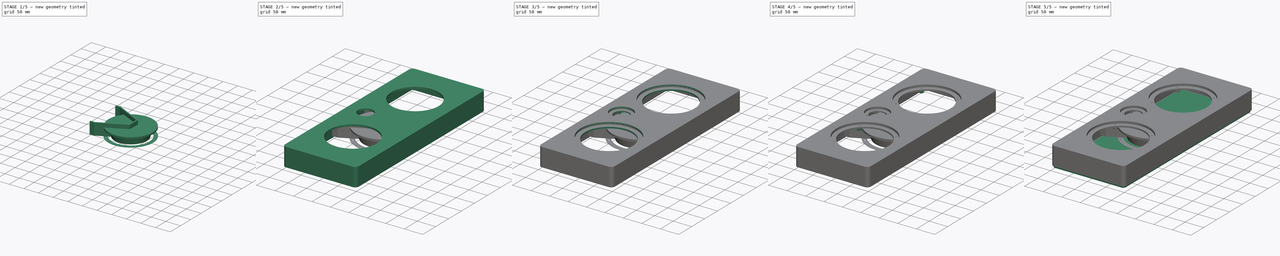
[diagram: build sequence overview — one tinted view per stage of 5, left to right]
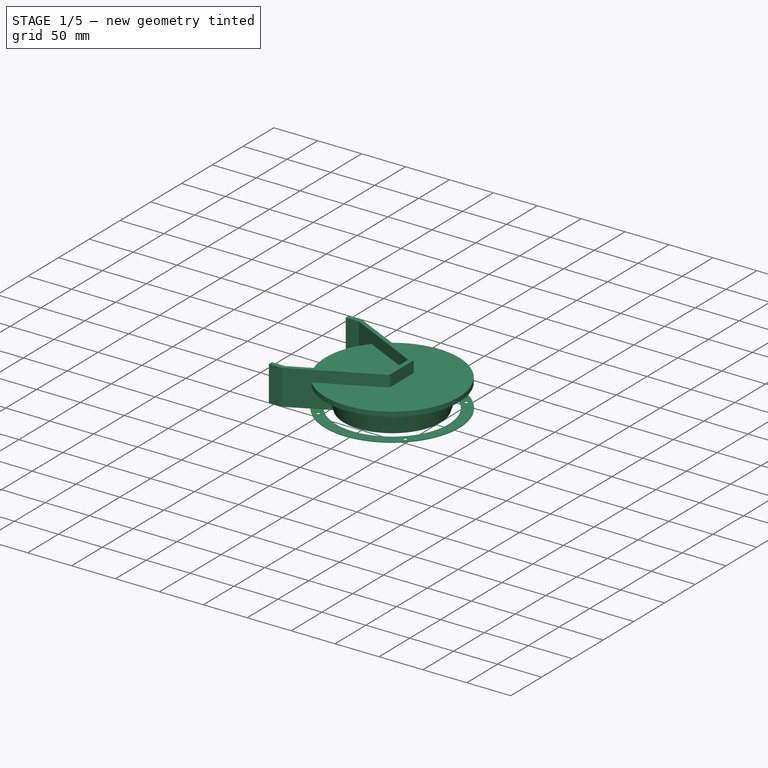
[diagram: stage 1 of 5 — iso view after this stage's code; geometry added in this stage tinted green]
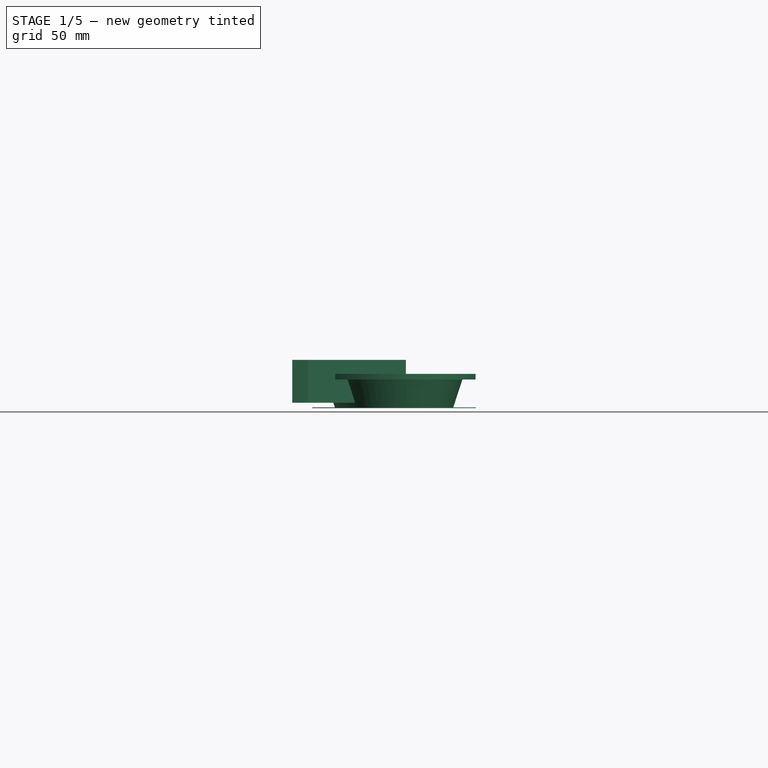
[diagram: stage 1 of 5 — front view after this stage's code; geometry added in this stage tinted green]
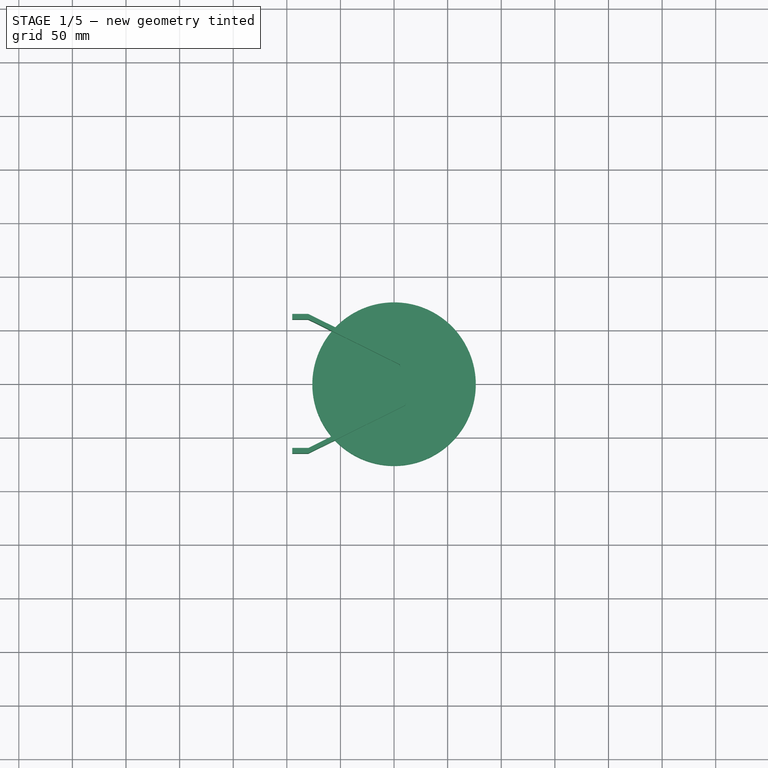
[diagram: stage 1 of 5 — top view after this stage's code; geometry added in this stage tinted green]
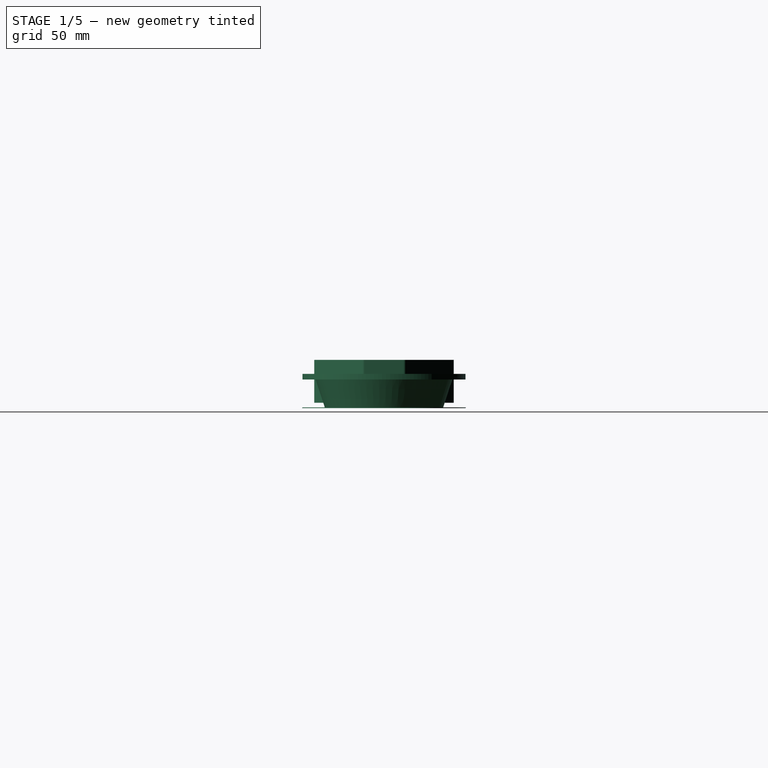
[diagram: stage 1 of 5 — right view after this stage's code; geometry added in this stage tinted green]
FCSTD DOCUMENT  (FreeCAD 1.1R42203 (Git))
Label: wallspeakers prototype v3
License: All rights reserved
LicenseURL: http://en.wikipedia.org/wiki/All_rights_reserved
objects: Sketcher::SketchObject×18, PartDesign::Pad×12, App::Point×7, PartDesign::Body×7, PartDesign::Hole×6, PartDesign::Pocket×3, Spreadsheet::Sheet×1, PartDesign::Thickness×1, PartDesign::PolarPattern×1, PartDesign::Fillet×1, PartDesign::Revolution×1
note: 117 computed .brp shape members not serialized (recipe doc carries the construction recipe); baked Part::Feature solids carry a one-line shape summary decoded from their .brp

FEATURE [Sketcher::SketchObject] Sketch001  label="driver holes"
  ArcFitTolerance = 1e-06
  AttachmentSupport = -> [Thickness]
  ExternalTypes = [0]
  FullyConstrained = true
  MakeInternals = false
  MapMode = 5
  Placement = pos=(0,0,50) rot=(0,0,1;0rad)
  expr: Constraints[0] = <<dim>>.bmr_hole_diameter
  expr: Constraints[2] = <<dim>>.bmr_x
  expr: Constraints[3] = <<dim>>.woofer_x
  expr: Constraints[4] = <<dim>>.woofer_y
  expr: Constraints[5] = <<dim>>.woofer_hole_diameter
  expr: Constraints[6] = <<dim>>.woofer_hole_diameter
  expr: Constraints[7] = <<dim>>.woofer_x
  expr: Constraints[8] = <<dim>>.woofer_y
  sketch-geometry (3):
    g0: Circle CenterX=-50 CenterY=0 CenterZ=0 NormalX=0 NormalY=0 NormalZ=1 AngleXU=0 Radius=20.5
    g1: Circle CenterX=0 CenterY=120 CenterZ=0 NormalX=0 NormalY=0 NormalZ=1 AngleXU=0 Radius=64
    g2: Circle CenterX=0 CenterY=-120 CenterZ=0 NormalX=0 NormalY=0 NormalZ=1 AngleXU=0 Radius=64
  constraints (9):
    c: Diameter(g0) = 41
    c: PointOnObject(g0,g-1)
    c: DistanceX(g0,g-1) = 50
    c: DistanceX(g1,g-1) = 0
    c: DistanceY(g-1,g1) = 120
    c: Diameter(g1) = 128
    c: Diameter(g2) = 128
    c: DistanceX(g2,g-1) = 0
    c: DistanceY(g2,g-1) = 120
FEATURE [Sketcher::SketchObject] Sketch002  label="woofer rebates"
  ArcFitTolerance = 1e-06
  AttachmentSupport = -> [Thickness]
  ExternalTypes = [0]
  FullyConstrained = true
  MakeInternals = false
  MapMode = 5
  Placement = pos=(0,0,50) rot=(0,0,1;0rad)
  expr: Constraints[0] = <<dim>>.woofer_x
  expr: Constraints[1] = <<dim>>.woofer_y
  expr: Constraints[2] = <<dim>>.woofer_rebate_diameter
  expr: Constraints[3] = <<dim>>.woofer_rebate_diameter
  expr: Constraints[4] = <<dim>>.woofer_x
  expr: Constraints[5] = <<dim>>.woofer_y
  sketch-geometry (2):
    g0: Circle CenterX=0 CenterY=120 CenterZ=0 NormalX=0 NormalY=0 NormalZ=1 AngleXU=0 Radius=76.25
    g1: Circle CenterX=0 CenterY=-120 CenterZ=0 NormalX=0 NormalY=0 NormalZ=1 AngleXU=0 Radius=76.25
  constraints (6):
    c: DistanceX(g0,g-1) = 0
    c: DistanceY(g-1,g0) = 120
    c: Diameter(g0) = 152.5
    c: Diameter(g1) = 152.5
    c: DistanceX(g1,g-1) = 0
    c: DistanceY(g1,g-1) = 120
FEATURE [Sketcher::SketchObject] Sketch004  label="bmr rebate"
  ArcFitTolerance = 1e-06
  AttachmentSupport = -> [Thickness]
  ExternalTypes = [0]
  FullyConstrained = true
  MakeInternals = false
  MapMode = 5
  Placement = pos=(0,0,50) rot=(0,0,1;0rad)
  expr: Constraints[0] = <<dim>>.bmr_rebate_diameter
  expr: Constraints[2] = <<dim>>.bmr_x
  sketch-geometry (1):
    g0: Circle CenterX=-50 CenterY=0 CenterZ=0 NormalX=0 NormalY=0 NormalZ=1 AngleXU=0 Radius=30
  constraints (3):
    c: Diameter(g0) = 60
    c: PointOnObject(g0,g-1)
    c: DistanceX(g0,g-1) = 50
FEATURE [App::Point] Origin001
  Role = Origin
FEATURE [Sketcher::SketchObject] Sketch009
  ArcFitTolerance = 1e-06
  AttachmentOffset = pos=(0,0,5) rot=(0,0,1;0rad)
  AttachmentSupport = -> [Origin002]
  ExternalTypes = [0]
  FullyConstrained = true
  MakeInternals = false
  MapMode = 5
  Placement = pos=(0,0,5) rot=(0,0,1;0rad)
  expr: .AttachmentOffset.Base.z = <<dim>>.rim_depth
  sketch-geometry (12):
    g0: LineSegment StartX=11 StartY=20 StartZ=0 EndX=11 EndY=-20 EndZ=0
    g1: LineSegment StartX=11 StartY=-20 StartZ=0 EndX=-80 EndY=-65 EndZ=0
    g2: LineSegment StartX=-80 StartY=-65 StartZ=0 EndX=-95 EndY=-65 EndZ=0
    g3: LineSegment StartX=11 StartY=20 StartZ=0 EndX=-80 EndY=65 EndZ=0
    g4: LineSegment StartX=-80 StartY=65 StartZ=0 EndX=-95 EndY=65 EndZ=0
    g5: LineSegment StartX=-95 StartY=-65 StartZ=0 EndX=-95 EndY=-60 EndZ=0
    g6: LineSegment StartX=-95 StartY=-60 StartZ=0 EndX=-80 EndY=-60 EndZ=0
    g7: LineSegment StartX=-80 StartY=-60 StartZ=0 EndX=6 EndY=-17.4725 EndZ=0
    g8: LineSegment StartX=6 StartY=-17.4725 StartZ=0 EndX=6 EndY=17.4725 EndZ=0
    g9: LineSegment StartX=6 StartY=17.4725 StartZ=0 EndX=-80 EndY=60 EndZ=0
    g10: LineSegment StartX=-80 StartY=60 StartZ=0 EndX=-95 EndY=60 EndZ=0
    g11: LineSegment StartX=-95 StartY=60 StartZ=0 EndX=-95 EndY=65 EndZ=0
  constraints (31):
    c: Parallel(g9,g3)
    c: Parallel(g7,g1)
    c: Parallel(g6,g2)
    c: Parallel(g4,g10)
    c: Coincident(g8,g9)
    c: Coincident(g8,g7)
    c: Coincident(g1,g0)
    c: Coincident(g0,g3)
    c: Coincident(g6,g5)
    c: Coincident(g5,g2)
    c: Coincident(g2,g1)
    c: Coincident(g7,g6)
    c: Coincident(g4,g3)
    c: Coincident(g9,g10)
    c: Coincident(g11,g10)
    c: Coincident(g4,g11)
    c: Symmetric(g0,g0,g-1)
    c: Symmetric(g8,g7,g-1)
    c: DistanceY(g11,g11) = 5
    c: Symmetric(g10,g5,g-1)
    c: Symmetric(g4,g2,g-1)
    c: Symmetric(g9,g6,g-1)
    c: Horizontal(g4)
    c: Distance(g9,g3) = 5
    c: DistanceX(g-1,g8) = 6
    c: DistanceX(g4,g4) = 15
    c: DistanceX(g8,g0) = 5
    c: DistanceX(g4,g-1) = 95
    c: DistanceY(g-1,g4) = 65
    c: Vertical(g5)
    c: DistanceY(g-1,g0) = 20
FEATURE [PartDesign::Pad] Pad003
  Direction = (0,0,1)
  Length = 40
  Length2 = 10
  Profile = -> Sketch009
  ReferenceAxis = -> Sketch009 [N_Axis]
  Suppressed = false
  Type = 0
  expr: Length = <<dim>>.total_depth - <<dim>>.wall_thickness - <<dim>>.rim_depth
FEATURE [PartDesign::Fillet] Fillet001
  Base = -> Pad003 [Edge23,Edge20,Edge32,Edge1,Edge2,Edge5]
  BaseFeature = -> Pad003
  Radius = 3
  SupportTransform = false
  Suppressed = false
  UseAllEdges = false
FEATURE [PartDesign::Body] Body001  label="internal baffle"
  AllowCompound = false
  Group = -> [Sketch009,Pad003,Sketch013,Hole005,Fillet001]
  Origin = -> Origin002
  Tip = -> Fillet001
FEATURE [App::Point] Origin011
  Role = Origin
FEATURE [Sketcher::SketchObject] Sketch019
  ArcFitTolerance = 1e-06
  AttachmentSupport = -> [Origin010]
  ExternalTypes = [0]
  FullyConstrained = true
  MakeInternals = false
  MapMode = 5
  Placement = pos=(0,0,0) rot=(0.57735,0.57735,0.57735;2.0944rad)
  sketch-geometry (6):
    g0: LineSegment StartX=0 StartY=32 StartZ=0 EndX=-76 EndY=32 EndZ=0
    g1: LineSegment StartX=-76 StartY=32 StartZ=0 EndX=-76 EndY=26.7 EndZ=0
    g2: LineSegment StartX=-76 StartY=26.7 StartZ=0 EndX=-63.75 EndY=26.7 EndZ=0
    g3: LineSegment StartX=-63.75 StartY=26.7 StartZ=0 EndX=-55 EndY=6e-16 EndZ=0
    g4: LineSegment StartX=-55 StartY=6e-16 StartZ=0 EndX=0 EndY=6e-16 EndZ=0
    g5: LineSegment StartX=0 StartY=6e-16 StartZ=0 EndX=0 EndY=32 EndZ=0
  constraints (17):
    c: PointOnObject(g0,g-2)
    c: Horizontal(g0)
    c: Coincident(g0,g1)
    c: Vertical(g1)
    c: Coincident(g1,g2)
    c: Horizontal(g2)
    c: Coincident(g2,g3)
    c: Coincident(g3,g4)
    c: Horizontal(g4)
    c: Coincident(g4,g5)
    c: Coincident(g5,g0)
    c: DistanceX(g0,g0) = 76
    c: DistanceY(g1,g1) = 5.3
    c: DistanceX(g2,g-1) = 63.75
    c: DistanceX(g3,g-1) = 55
    c: DistanceY(g5,g5) = 32
    c: Coincident(g4,g-1)
FEATURE [PartDesign::Revolution] Revolution
  Angle = 360
  Angle2 = 60
  Axis = (0,0,1)
  Base = (0,0,0)
  Profile = -> Sketch019
  ReferenceAxis = -> Sketch019 [V_Axis]
  Suppressed = false
  Type = 0
FEATURE [PartDesign::Body] Body005  label="woofer rough model for fitting"
  AllowCompound = false
  Group = -> [Sketch019,Revolution]
  Origin = -> Origin010
  Placement = pos=(0,120,15) rot=(0,0,1;0rad)
  Tip = -> Revolution
FEATURE [PartDesign::Pad] Pad010  label="woofer gasket pad"
  Direction = (0,0,1)
  Length = 0.7
  Length2 = 10
  Profile = -> Sketch017
  ReferenceAxis = -> Sketch017 [N_Axis]
  Suppressed = false
  Type = 0
FEATURE [PartDesign::Body] Body004  label="woofer gasket 1"
  AllowCompound = false
  Group = -> [Sketch017,Pad010]
  Origin = -> Origin008
  Placement = pos=(0,120,44) rot=(0,0,1;0rad)
  Tip = -> Pad010
  expr: .Placement.Base.y = <<dim>>.woofer_y
  expr: .Placement.Base.z = <<dim>>.total_depth - <<dim>>.woofer_rebate_depth
FEATURE [App::Point] Origin015
  Role = Origin
FEATURE [Sketcher::SketchObject] Sketch020
  ArcFitTolerance = 1e-06
  AttachmentSupport = -> [Origin014]
  ExternalTypes = [0]
  FullyConstrained = true
  MakeInternals = false
  MapMode = 5
  sketch-geometry (6):
    g0: Circle CenterX=0 CenterY=0 CenterZ=0 NormalX=0 NormalY=0 NormalZ=1 AngleXU=0 Radius=30
    g1: Circle CenterX=0 CenterY=0 CenterZ=0 NormalX=0 NormalY=0 NormalZ=1 AngleXU=0 Radius=20.5
    g2: Circle CenterX=16.95 CenterY=-16.95 CenterZ=0 NormalX=0 NormalY=0 NormalZ=1 AngleXU=0 Radius=1.75
    g3: Circle CenterX=16.95 CenterY=16.95 CenterZ=0 NormalX=0 NormalY=0 NormalZ=1 AngleXU=0 Radius=1.75
    g4: Circle CenterX=-16.95 CenterY=16.95 CenterZ=0 NormalX=0 NormalY=0 NormalZ=1 AngleXU=0 Radius=1.75
    g5: Circle CenterX=-16.95 CenterY=-16.95 CenterZ=0 NormalX=0 NormalY=0 NormalZ=1 AngleXU=0 Radius=1.75
  constraints (13):
    c: Diameter(g0) = 60
    c: Diameter(g1) = 41
    c: Coincident(g0,g1)
    c: Coincident(g-1,g0)
    c: Equal(g2,g3)
    c: Equal(g2,g4)
    c: Equal(g2,g5)
    c: Diameter(g2) = 3.5
    c: Symmetric(g4,g3,g-2)
    c: Symmetric(g5,g2,g-2)
    c: Symmetric(g4,g5,g-1)
    c: DistanceX(g-1,g3) = 16.95
    c: DistanceY(g-1,g3) = 16.95
FEATURE [PartDesign::Pad] Pad011
  Direction = (0,0,1)
  Length = 0.7
  Length2 = 10
  Profile = -> Sketch020
  ReferenceAxis = -> Sketch020 [N_Axis]
  Suppressed = false
  Type = 0
FEATURE [PartDesign::Body] Body007  label="bmr gasket"
  AllowCompound = false
  Group = -> [Sketch020,Pad011]
  Origin = -> Origin014
  Placement = pos=(-50,0,44) rot=(0,0,1;0rad)
  Tip = -> Pad011
  expr: .Placement.Base.x = -<<dim>>.bmr_x
  expr: .Placement.Base.z = <<dim>>.total_depth - <<dim>>.bmr_rebate_depth
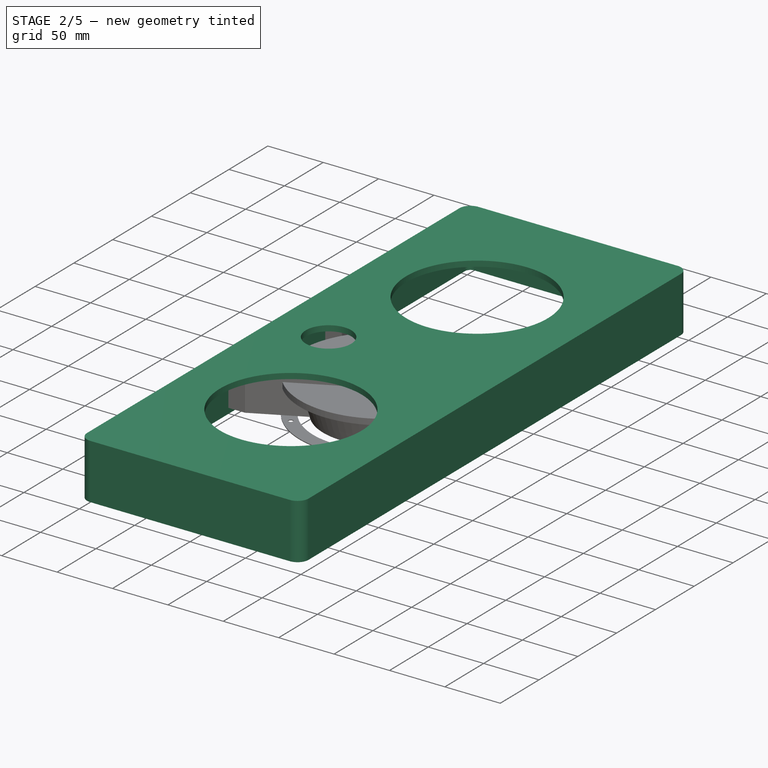
[diagram: stage 2 of 5 — iso view after this stage's code; geometry added in this stage tinted green]
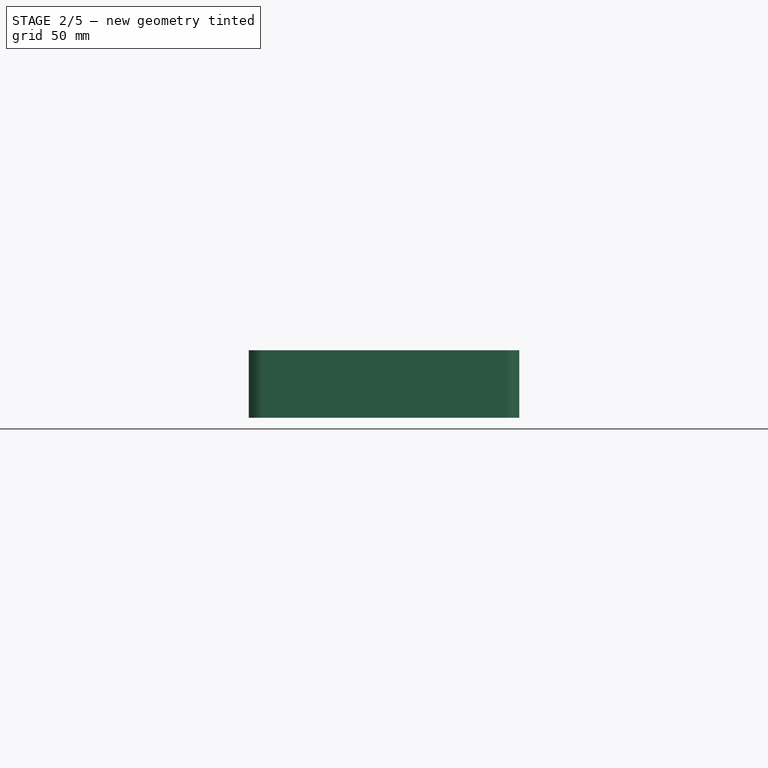
[diagram: stage 2 of 5 — front view after this stage's code; geometry added in this stage tinted green]
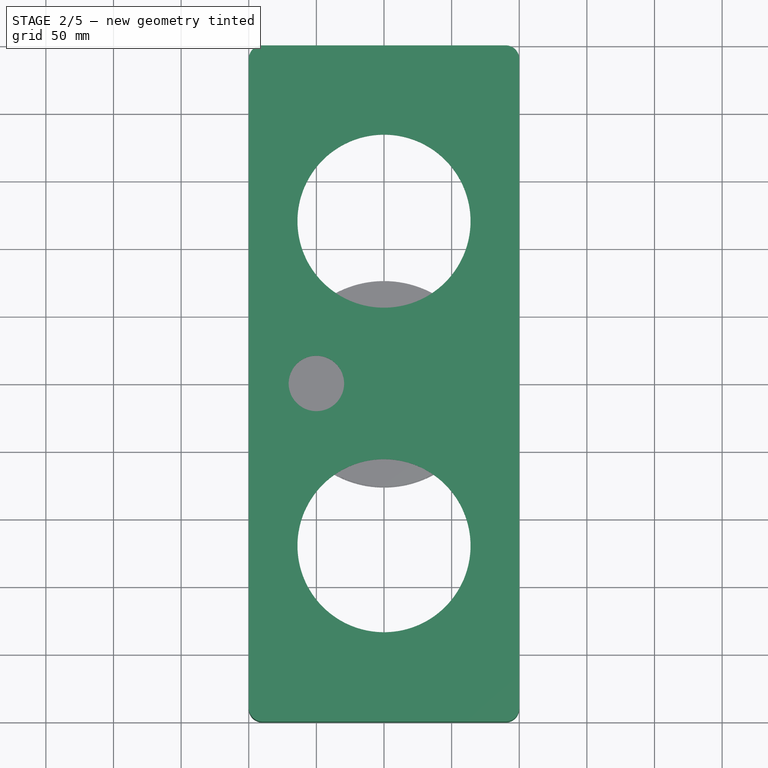
[diagram: stage 2 of 5 — top view after this stage's code; geometry added in this stage tinted green]
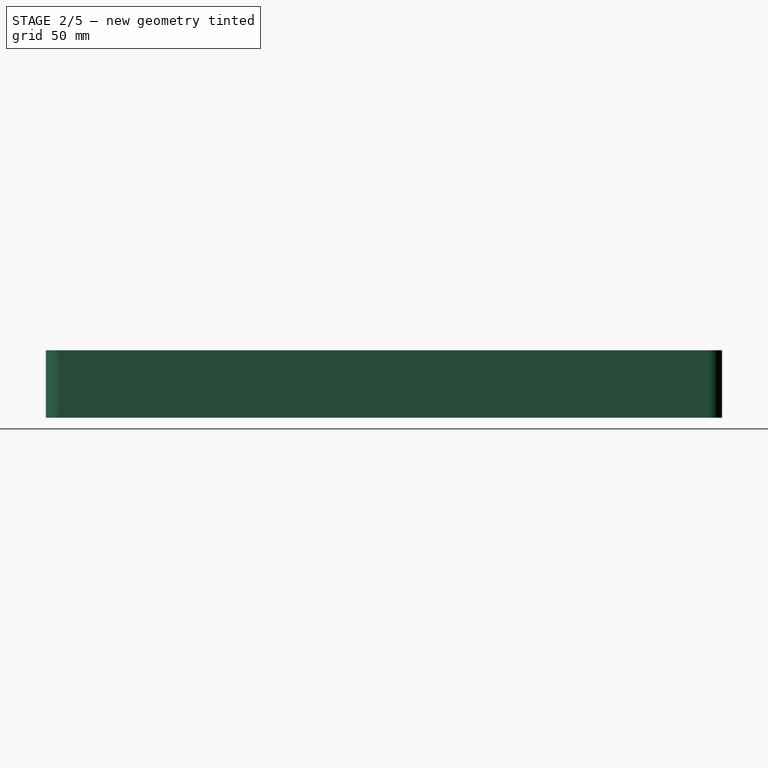
[diagram: stage 2 of 5 — right view after this stage's code; geometry added in this stage tinted green]
FEATURE [Spreadsheet::Sheet] Spreadsheet  label="dim"
  cells = A1='ext_width; B1(ext_width)=200; C1='x; A2='ext_length; B2(ext_length)=500; C2='x; A3='back_panel_width; B3(back_panel_width)=194; C3='x; A4='back_panel_length; B4(back_panel_length)=494; C4='x; A5='back_panel_radius; B5(back_panel_radius)=7; C5='x; A6='back_thickness; B6(back_thickness)=5; C6='x; A7='front_thickness; B7(front_thickness)=5; C7='x; A8='total_depth; B8(total_depth)=50; C8='x; A9='wall_thickness; B9(wall_thickness)=5; C9='x; A10='front_roundover; B10(front_roundover)=10; C10='x; A11='corner_roundover; B11(corner_roundover)=10; C11='x; A13='rim_width; B13(rim_width)=3; C13='x; A14='rim_depth; B14(rim_depth)=5; C14='x; A16='bmr_x; B16(bmr_x)=50; C16='x; A17='bmr_y; B17(bmr_y)=0; C17='x; A18='bmr_screw_distance; B18(bmr_screw_distance)=24; C18='x; A19='bmr_screw_offset; B19(bmr_screw_offset)=16.95; C19='x; A20='bmr_hole_diameter; B20(bmr_hole_diameter)=41; C20='x; A21='bmr_rebate_depth; B21(bmr_rebate_depth)=6; C21='x; A22='bmr_post_width; B22(bmr_post_width)=7; A23='bmr_rebate_diameter; B23(bmr_rebate_diameter)=60; C23='x; A25='woofer_x; B25(woofer_x)=0; C25='x; A26='woofer_y; B26(woofer_y)=120; C26='x; A27='woofer_support_thickness; B27(woofer_support_thickness)=5; C27='x; A28='woofer_support_diameter; B28(woofer_support_diameter)=164; C28='x; A29='woofer_screw_distance; B29(woofer_screw_thickness)=70.05; C29='x; A30='woofer_screw_offset; B30(woofer_screw_offset)==B29 * 0.707; C30='x; A31='woofer_hole_diameter; B31(woofer_hole_diameter)=128; C31='x; A32='woofer_rebate_depth; B32(woofer_rebate_depth)=6; C32='x; A33='woofer_rebate_diameter; B33(woofer_rebate_diameter)=152.5; C33='x; A34='woofer_gasket_depth; B34=1; A36='panel_screwpost_diameter; B36=10; A38='woofer cutout spec; B38=127.5; C38=0.3; A39='woofer rebate spec; B39=152; C39=0.3; A40='woofer rebate depth spec; B40=5.3; C40=0.3; A42='gasket thickness (compressed); B42=0.7
FEATURE [Sketcher::SketchObject] Sketch  label="outline"
  ArcFitTolerance = 1e-06
  AttachmentSupport = -> [XY_Plane]
  ExternalTypes = [0]
  FullyConstrained = true
  MakeInternals = false
  MapMode = 5
  expr: Constraints[17] = <<dim>>.corner_roundover
  expr: Constraints[18] = <<dim>>.ext_width
  expr: Constraints[19] = <<dim>>.ext_length
  sketch-geometry (10):
    g0: LineSegment StartX=-100 StartY=240 StartZ=0 EndX=-100 EndY=-240 EndZ=0
    g1: LineSegment StartX=-90 StartY=-250 StartZ=0 EndX=90 EndY=-250 EndZ=0
    g2: LineSegment StartX=100 StartY=-240 StartZ=0 EndX=100 EndY=240 EndZ=0
    g3: LineSegment StartX=90 StartY=250 StartZ=0 EndX=-90 EndY=250 EndZ=0
    g4: ArcOfCircle CenterX=-90 CenterY=240 CenterZ=0 NormalX=0 NormalY=0 NormalZ=1 AngleXU=0 Radius=10 StartAngle=1.5708 EndAngle=3.14159
    g5: ArcOfCircle CenterX=-90 CenterY=-240 CenterZ=0 NormalX=0 NormalY=0 NormalZ=1 AngleXU=0 Radius=10 StartAngle=3.14159 EndAngle=4.71239
    g6: ArcOfCircle CenterX=90 CenterY=-240 CenterZ=0 NormalX=0 NormalY=0 NormalZ=1 AngleXU=0 Radius=10 StartAngle=4.71239 EndAngle=6.28319
    g7: ArcOfCircle CenterX=90 CenterY=240 CenterZ=0 NormalX=0 NormalY=0 NormalZ=1 AngleXU=0 Radius=10 StartAngle=1.4e-15 EndAngle=1.5708
    g8: GeomPoint [constr] X=-100 Y=250 Z=0
    g9: GeomPoint [constr] X=100 Y=-250 Z=0
  constraints (22):
    c: Tangent(g0,g4) = -1.5708
    c: Tangent(g0,g5) = -1.5708
    c: Tangent(g1,g5) = -1.5708
    c: Tangent(g1,g6) = -1.5708
    c: Tangent(g2,g6) = -1.5708
    c: Tangent(g2,g7) = -1.5708
    c: Tangent(g3,g7) = -1.5708
    c: Tangent(g3,g4) = -1.5708
    c: Vertical(g0)
    c: Vertical(g2)
    c: Horizontal(g1)
    c: Horizontal(g3)
    c: Equal(g5,g6)
    c: PointOnObject(g8,g0)
    c: PointOnObject(g8,g3)
    c: PointOnObject(g9,g1)
    c: PointOnObject(g9,g2)
    c: Radius(g5) = 10
    c: DistanceX(g0,g2) = 200
    c: DistanceY(g1,g3) = 500
    c: Symmetric(g0,g2,g-2)
    c: Symmetric(g3,g1,g-1)
FEATURE [PartDesign::Pad] Pad  label="main solid body"
  Direction = (0,0,1)
  Length = 50
  Length2 = 10
  Profile = -> Sketch
  ReferenceAxis = -> Sketch [N_Axis]
  Suppressed = false
  Type = 0
  expr: Length = <<dim>>.total_depth
FEATURE [PartDesign::Thickness] Thickness  label="thickness main body"
  Base = -> Pad [Face9]
  BaseFeature = -> Pad
  Intersection = false
  Join = 0
  Mode = 0
  Reversed = true
  SupportTransform = false
  Suppressed = false
  Value = 5
  expr: Value = <<dim>>.wall_thickness
FEATURE [PartDesign::Body] Body003  label="Tweeter ring"
  AllowCompound = false
  Group = -> [Sketch015,Pad008,PolarPattern]
  Origin = -> Origin006
  Placement = pos=(-50,0,43.75) rot=(0,0,1;0rad)
  Tip = -> PolarPattern
FEATURE [Sketcher::SketchObject] Sketch018  label="back panel screw posts sketch"
  ArcFitTolerance = 1e-06
  AttachmentOffset = pos=(0,0,-5) rot=(0,0,1;0rad)
  AttachmentSupport = -> [Pad]
  ExternalTypes = [0]
  FullyConstrained = false
  MakeInternals = false
  MapMode = 5
  Placement = pos=(0,0,5) rot=(1,0,0;3.14159rad)
  expr: .AttachmentOffset.Base.z = -<<dim>>.back_thickness
  expr: Constraints[3] = <<dim>>.back_panel_length / 2 - 7.5
  expr: Constraints[4] = <<dim>>.back_panel_width / 2 - 7.5
  sketch-geometry (7):
    g0: Circle CenterX=89.5 CenterY=239.5 CenterZ=0 NormalX=0 NormalY=0 NormalZ=1 AngleXU=0 Radius=5
    g1: Circle CenterX=-89.5 CenterY=239.5 CenterZ=0 NormalX=0 NormalY=0 NormalZ=1 AngleXU=0 Radius=5
    g2: Circle CenterX=-92.5 CenterY=0 CenterZ=0 NormalX=0 NormalY=0 NormalZ=1 AngleXU=0 Radius=5
    g3: Circle CenterX=92.5 CenterY=0 CenterZ=0 NormalX=0 NormalY=0 NormalZ=1 AngleXU=0 Radius=5
    g4: Circle CenterX=-89.5 CenterY=-239.5 CenterZ=0 NormalX=0 NormalY=0 NormalZ=1 AngleXU=0 Radius=5
    g5: Circle CenterX=89.5 CenterY=-239.5 CenterZ=0 NormalX=0 NormalY=0 NormalZ=1 AngleXU=0 Radius=5
    g6: Circle CenterX=20 CenterY=0 CenterZ=0 NormalX=0 NormalY=0 NormalZ=1 AngleXU=0 Radius=5
  constraints (16):
    c: Diameter(g0) = 10
    c: Diameter(g1) = 10
    c: Symmetric(g1,g0,g-2)
    c: DistanceY(g-1,g1) = 239.5
    c: DistanceX(g1,g-1) = 89.5
    c: Diameter(g2) = 10
    c: PointOnObject(g2,g-1)
    c: Diameter(g3) = 10
    c: Diameter(g4) = 10
    c: Diameter(g5) = 10
    c: Symmetric(g2,g3,g-2)
    c: Symmetric(g1,g4,g-1)
    c: Symmetric(g0,g5,g-1)
    c: Diameter(g6) = 10
    c: PointOnObject(g6,g-1)
    c: DistanceX(g-1,g6) = 20
FEATURE [PartDesign::Pad] Pad009  label="back panel screw posts pad"
  BaseFeature = -> Thickness
  Direction = (0,0,-1)
  Length = 40
  Length2 = 10
  Profile = -> Sketch018
  ReferenceAxis = -> Sketch018 [N_Axis]
  Reversed = true
  Suppressed = false
  Type = 0
  expr: Length = 40
FEATURE [PartDesign::Pocket] Pocket  label="driver holes pocket"
  BaseFeature = -> Pad009
  Direction = (0,0,-1)
  Length = 5
  Length2 = 5
  Profile = -> Sketch001
  ReferenceAxis = -> Sketch001 [N_Axis]
  Suppressed = false
  Type = 0
  expr: Length = <<dim>>.wall_thickness
FEATURE [PartDesign::Body] Body  label="main shell"
  AllowCompound = false
  Group = -> [Sketch,Pad,Thickness,Pad009,Pocket,Pad002,Pad001,Sketch001,Sketch002,Pocket001,Sketch003,Sketch004,Pocket002,Pad005,Pad006,Pad007,Sketch005,Hole,Sketch006,Hole001,Sketch007,Hole002,Sketch008,Sketch018,Hole004]
  Origin = -> Origin
  Tip = -> Hole004
FEATURE [PartDesign::Hole] Hole005
  BaseFeature = -> Pad003
  BaseProfileType = 7
  CustomThreadClearance = 0
  Depth = 10
  DepthType = 0
  Diameter = 4
  DrillForDepth = false
  DrillPoint = 1
  DrillPointAngle = 118
  HoleCutCountersinkAngle = 90
  HoleCutCustomValues = false
  HoleCutDepth = 0
  HoleCutDiameter = 0
  HoleCutType = 0
  ModelThread = false
  Profile = -> Sketch013
  Suppressed = false
  Tapered = false
  TaperedAngle = 90
  ThreadClass = 0
  ThreadDepth = 10
  ThreadDepthType = 0
  ThreadDiameter = 4
  ThreadDirection = 0
  ThreadFit = 0
  ThreadSize = 0
  ThreadType = 0
  Threaded = false
  UseCustomThreadClearance = false
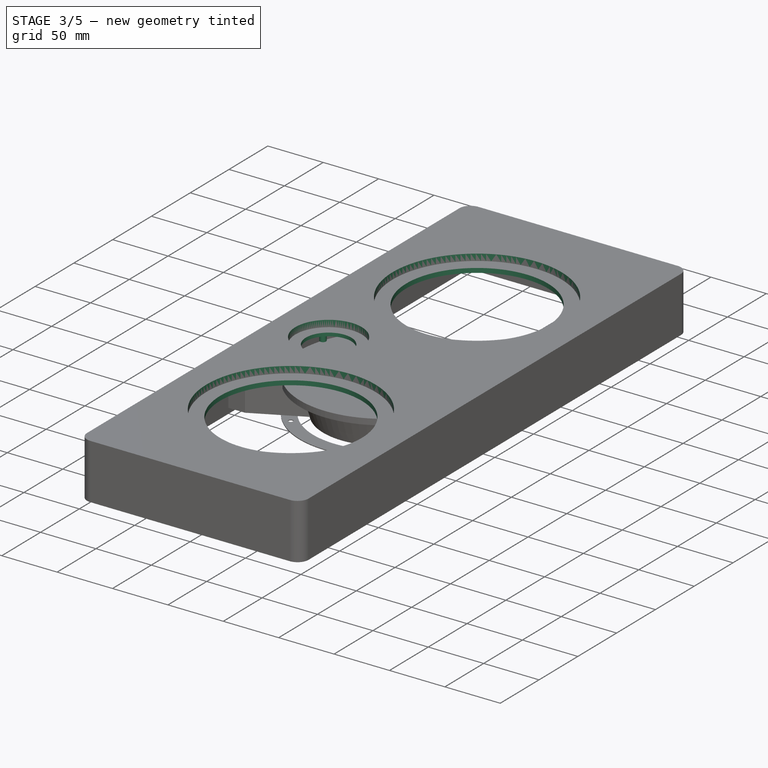
[diagram: stage 3 of 5 — iso view after this stage's code; geometry added in this stage tinted green]
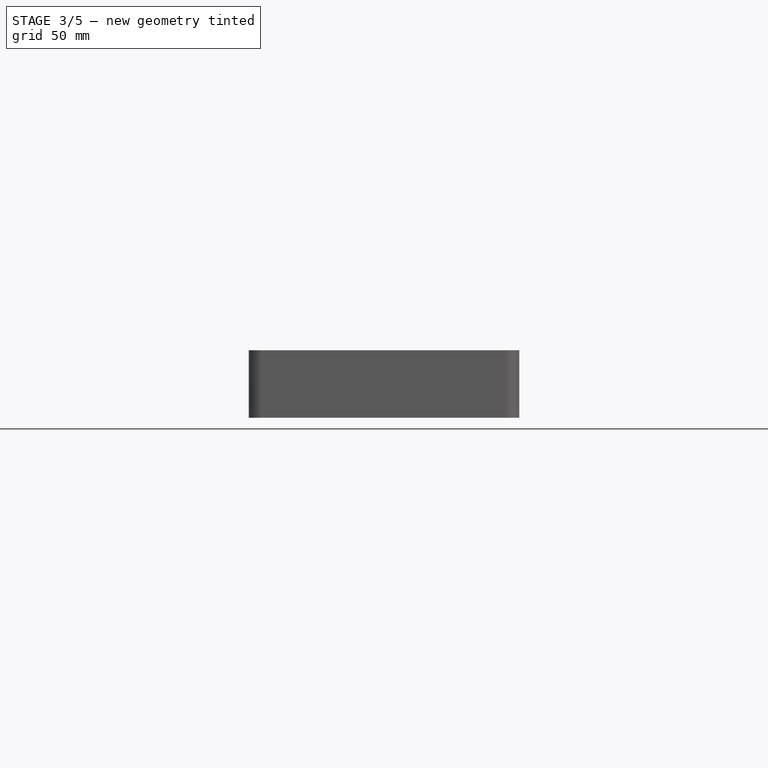
[diagram: stage 3 of 5 — front view after this stage's code; geometry added in this stage tinted green]
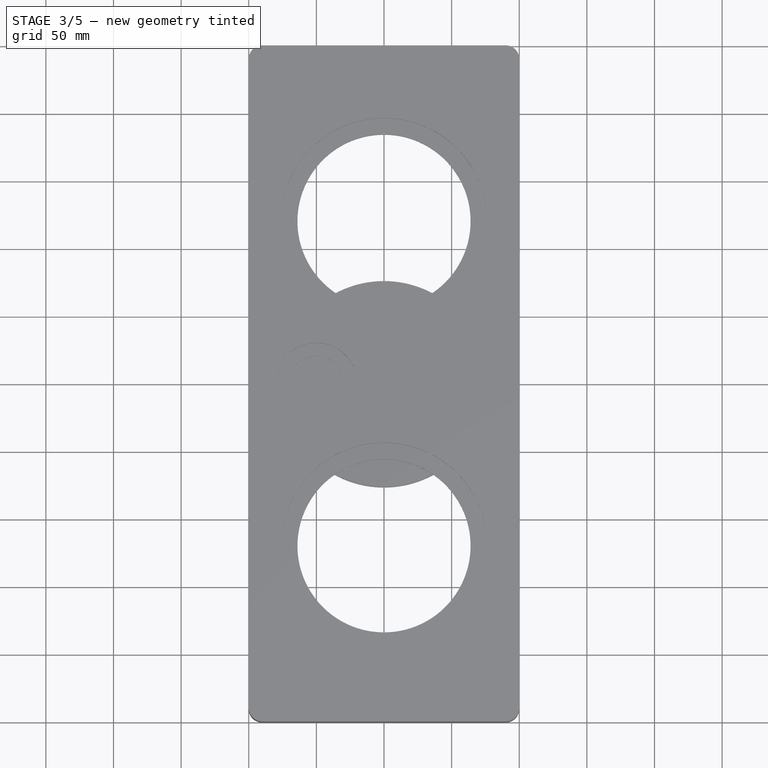
[diagram: stage 3 of 5 — top view after this stage's code; geometry added in this stage tinted green]
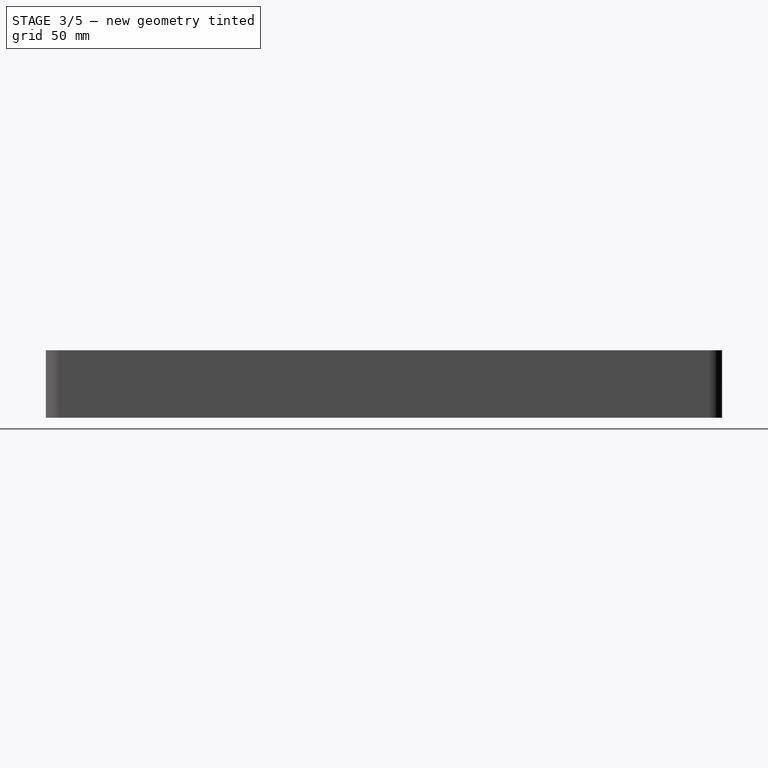
[diagram: stage 3 of 5 — right view after this stage's code; geometry added in this stage tinted green]
FEATURE [Sketcher::SketchObject] Sketch003  label="woofer support rings"
  ArcFitTolerance = 1e-06
  AttachmentSupport = -> [Pocket]
  ExternalTypes = [0]
  FullyConstrained = true
  MakeInternals = false
  MapMode = 5
  Placement = pos=(0,0,45) rot=(1,0,0;3.14159rad)
  expr: Constraints[0] = <<dim>>.woofer_x
  expr: Constraints[11] = <<dim>>.woofer_y
  expr: Constraints[1] = <<dim>>.woofer_y
  expr: Constraints[2] = <<dim>>.woofer_hole_diameter
  expr: Constraints[3] = <<dim>>.woofer_hole_diameter
  expr: Constraints[4] = <<dim>>.woofer_x
  expr: Constraints[5] = <<dim>>.woofer_y
  expr: Constraints[7] = <<dim>>.woofer_y
  expr: Constraints[8] = <<dim>>.woofer_support_diameter
  expr: Constraints[9] = <<dim>>.woofer_support_diameter
  sketch-geometry (4):
    g0: Circle CenterX=0 CenterY=120 CenterZ=0 NormalX=0 NormalY=0 NormalZ=1 AngleXU=0 Radius=64
    g1: Circle CenterX=0 CenterY=-120 CenterZ=0 NormalX=0 NormalY=0 NormalZ=1 AngleXU=0 Radius=64
    g2: Circle CenterX=0 CenterY=120 CenterZ=0 NormalX=0 NormalY=0 NormalZ=1 AngleXU=0 Radius=82
    g3: Circle CenterX=0 CenterY=-120 CenterZ=0 NormalX=0 NormalY=0 NormalZ=1 AngleXU=0 Radius=82
  constraints (12):
    c: DistanceX(g0,g-1) = 0
    c: DistanceY(g-1,g0) = 120
    c: Diameter(g0) = 128
    c: Diameter(g1) = 128
    c: DistanceX(g1,g-1) = 0
    c: DistanceY(g1,g-1) = 120
    c: DistanceX(g2,g-1) = 0
    c: DistanceY(g-1,g2) = 120
    c: Diameter(g2) = 164
    c: Diameter(g3) = 164
    c: DistanceX(g3,g-1) = 0
    c: DistanceY(g3,g-1) = 120
FEATURE [Sketcher::SketchObject] Sketch008  label="bmr support ring"
  ArcFitTolerance = 1e-06
  AttachmentSupport = -> [Pocket]
  ExternalTypes = [0]
  FullyConstrained = true
  MakeInternals = true
  MapMode = 5
  Placement = pos=(0,0,45) rot=(1,0,0;3.14159rad)
  expr: Constraints[0] = <<dim>>.bmr_rebate_diameter + 5
  expr: Constraints[2] = <<dim>>.bmr_x
  expr: Constraints[3] = <<dim>>.bmr_hole_diameter
  expr: Constraints[5] = <<dim>>.bmr_x
  sketch-geometry (2):
    g0: Circle CenterX=-50 CenterY=0 CenterZ=0 NormalX=0 NormalY=0 NormalZ=1 AngleXU=0 Radius=32.5
    g1: Circle CenterX=-50 CenterY=0 CenterZ=0 NormalX=0 NormalY=0 NormalZ=1 AngleXU=0 Radius=20.5
  constraints (6):
    c: Diameter(g0) = 65
    c: PointOnObject(g0,g-1)
    c: DistanceX(g0,g-1) = 50
    c: Diameter(g1) = 41
    c: PointOnObject(g1,g-1)
    c: DistanceX(g1,g-1) = 50
FEATURE [PartDesign::Pad] Pad002  label="bmr support pad"
  BaseFeature = -> Pocket
  Direction = (0,0,-1)
  Length = 4
  Length2 = 10
  Profile = -> Sketch008
  ReferenceAxis = -> Sketch008 [N_Axis]
  Suppressed = false
  Type = 0
FEATURE [PartDesign::Pad] Pad001  label="woofer support pad"
  BaseFeature = -> Pad002
  Direction = (0,0,-1)
  Length = 5
  Length2 = 10
  Profile = -> Sketch003
  ReferenceAxis = -> Sketch003 [N_Axis]
  Suppressed = false
  Type = 0
  expr: Length = <<dim>>.woofer_support_thickness
FEATURE [PartDesign::Pocket] Pocket001  label="woofer rebate pocket"
  BaseFeature = -> Pad001
  Direction = (0,0,-1)
  Length = 6
  Length2 = 5
  Profile = -> Sketch002
  ReferenceAxis = -> Sketch002 [N_Axis]
  Suppressed = false
  Type = 0
  expr: Length = <<dim>>.woofer_rebate_depth
FEATURE [PartDesign::Pocket] Pocket002  label="bmr rebate pocket"
  BaseFeature = -> Pocket001
  Direction = (0,0,-1)
  Length = 6
  Length2 = 5
  Profile = -> Sketch004
  ReferenceAxis = -> Sketch004 [N_Axis]
  Suppressed = false
  Type = 0
  expr: Length = <<dim>>.bmr_rebate_depth
FEATURE [Sketcher::SketchObject] Sketch005  label="bmr screw positions"
  ArcFitTolerance = 1e-06
  AttachmentOffset = pos=(-50,0,0) rot=(0,0,1;0rad)
  AttachmentSupport = -> [Pocket002]
  ExternalTypes = [0]
  FullyConstrained = true
  MakeInternals = false
  MapMode = 5
  Placement = pos=(-50,0,44) rot=(0,0,1;0rad)
  expr: .AttachmentOffset.Base.x = -<<dim>>.bmr_x
  expr: .AttachmentOffset.Base.y = <<dim>>.bmr_y
  expr: Constraints[7] = <<dim>>.bmr_screw_offset
  expr: Constraints[8] = <<dim>>.bmr_screw_offset
  sketch-geometry (4):
    g0: Circle CenterX=16.95 CenterY=-16.95 CenterZ=0 NormalX=0 NormalY=0 NormalZ=1 AngleXU=0 Radius=2.75
    g1: Circle CenterX=16.95 CenterY=16.95 CenterZ=0 NormalX=0 NormalY=0 NormalZ=1 AngleXU=0 Radius=2.75
    g2: Circle CenterX=-16.95 CenterY=16.95 CenterZ=0 NormalX=0 NormalY=0 NormalZ=1 AngleXU=0 Radius=2.75
    g3: Circle CenterX=-16.95 CenterY=-16.95 CenterZ=0 NormalX=0 NormalY=0 NormalZ=1 AngleXU=0 Radius=2.75
  constraints (9):
    c: Equal(g0,g1)
    c: Equal(g0,g2)
    c: Equal(g0,g3)
    c: Diameter(g0) = 5.5
    c: Symmetric(g2,g1,g-2)
    c: Symmetric(g3,g0,g-2)
    c: Symmetric(g2,g3,g-1)
    c: DistanceX(g-1,g1) = 16.95
    c: DistanceY(g-1,g1) = 16.95
FEATURE [PartDesign::Pad] Pad005  label="BMR screw lugs"
  BaseFeature = -> Pocket002
  Direction = (0,0,1)
  Length = 8
  Length2 = 10
  Profile = -> Sketch005
  ReferenceAxis = -> Sketch005 [N_Axis]
  Reversed = true
  Suppressed = false
  Type = 0
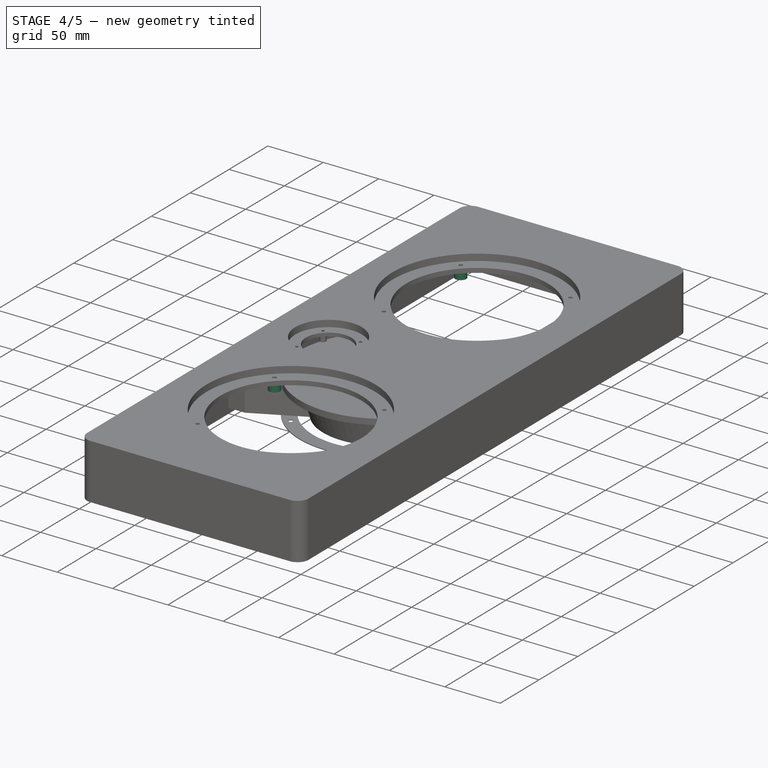
[diagram: stage 4 of 5 — iso view after this stage's code; geometry added in this stage tinted green]
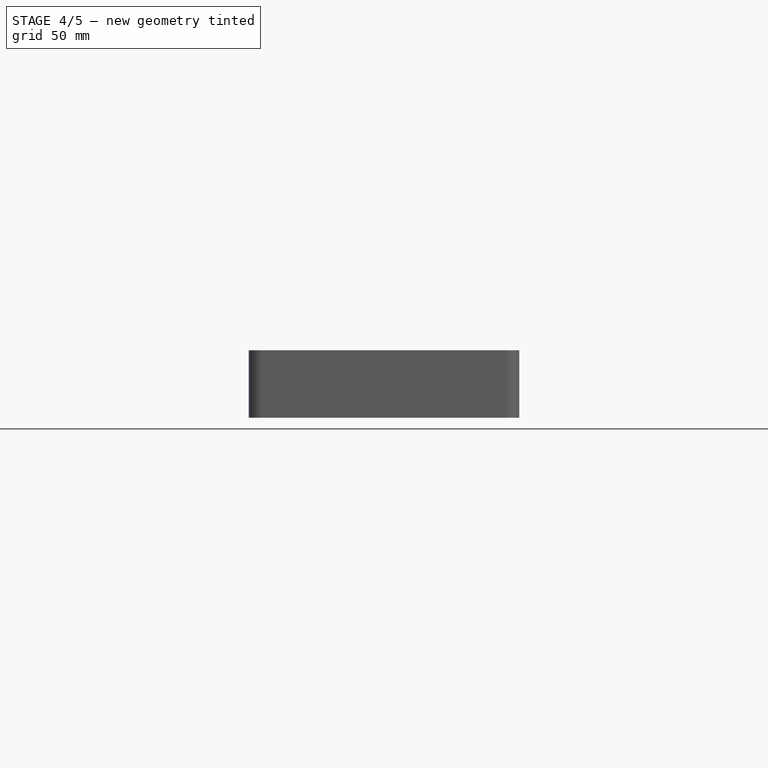
[diagram: stage 4 of 5 — front view after this stage's code; geometry added in this stage tinted green]
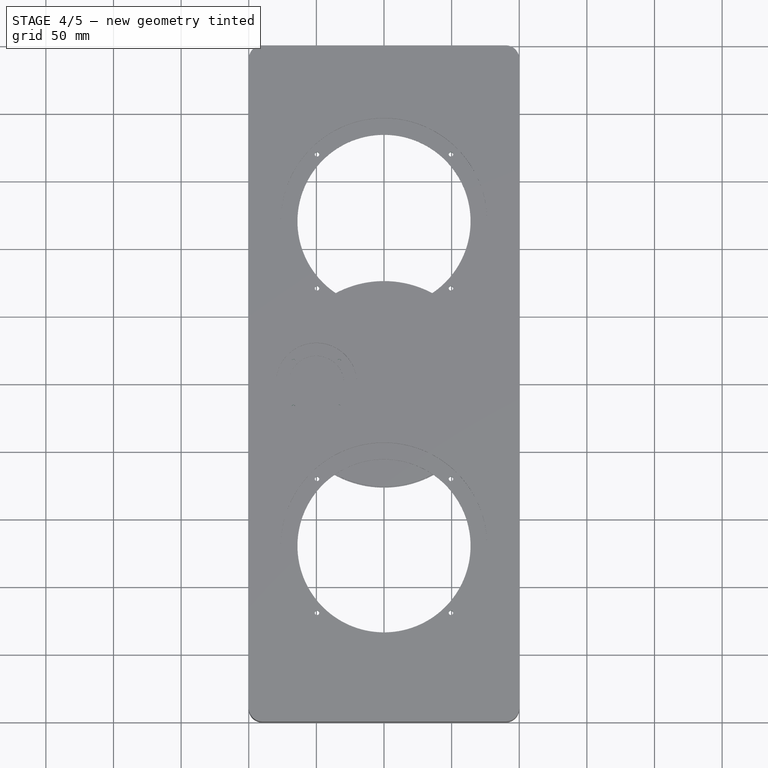
[diagram: stage 4 of 5 — top view after this stage's code; geometry added in this stage tinted green]
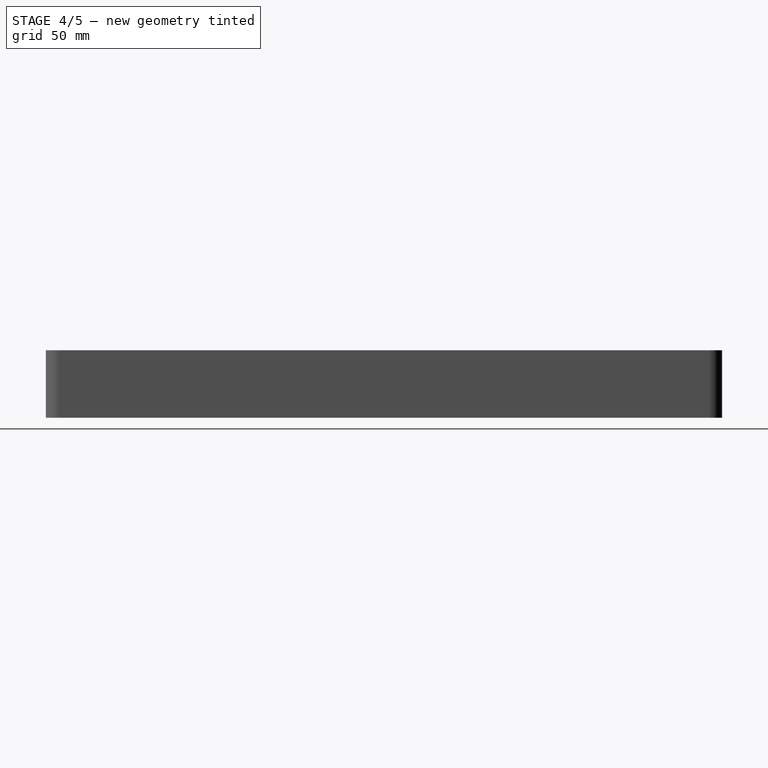
[diagram: stage 4 of 5 — right view after this stage's code; geometry added in this stage tinted green]
FEATURE [Sketcher::SketchObject] Sketch006  label="top woofer screw positions"
  ArcFitTolerance = 1e-06
  AttachmentOffset = pos=(0,120,0) rot=(0,0,1;0rad)
  AttachmentSupport = -> [Pad005]
  ExternalTypes = [0]
  FullyConstrained = true
  MakeInternals = false
  MapMode = 5
  Placement = pos=(0,120,44) rot=(0,0,1;0rad)
  expr: .AttachmentOffset.Base.x = -<<dim>>.woofer_x
  expr: .AttachmentOffset.Base.y = <<dim>>.woofer_y
  expr: Constraints[7] = <<dim>>.woofer_screw_offset
  expr: Constraints[8] = <<dim>>.woofer_screw_offset
  sketch-geometry (4):
    g0: Circle CenterX=49.5253 CenterY=-49.5253 CenterZ=0 NormalX=0 NormalY=0 NormalZ=1 AngleXU=0 Radius=5
    g1: Circle CenterX=49.5253 CenterY=49.5253 CenterZ=0 NormalX=0 NormalY=0 NormalZ=1 AngleXU=0 Radius=5
    g2: Circle CenterX=-49.5253 CenterY=49.5253 CenterZ=0 NormalX=0 NormalY=0 NormalZ=1 AngleXU=0 Radius=5
    g3: Circle CenterX=-49.5253 CenterY=-49.5253 CenterZ=0 NormalX=0 NormalY=0 NormalZ=1 AngleXU=0 Radius=5
  constraints (9):
    c: Equal(g0,g1)
    c: Equal(g0,g2)
    c: Equal(g0,g3)
    c: Diameter(g0) = 10
    c: Symmetric(g2,g1,g-2)
    c: Symmetric(g3,g0,g-2)
    c: Symmetric(g2,g3,g-1)
    c: DistanceX(g-1,g1) = 49.5253
    c: DistanceY(g-1,g1) = 49.5253
FEATURE [PartDesign::Pad] Pad006  label="top woofer screw lugs"
  BaseFeature = -> Pad005
  Direction = (0,0,1)
  Length = 10
  Length2 = 10
  Profile = -> Sketch006
  ReferenceAxis = -> Sketch006 [N_Axis]
  Reversed = true
  Suppressed = false
  Type = 0
FEATURE [Sketcher::SketchObject] Sketch007  label="bottom woofer screw positions"
  ArcFitTolerance = 1e-06
  AttachmentOffset = pos=(0,-120,0) rot=(0,0,1;0rad)
  AttachmentSupport = -> [Pad005]
  ExternalTypes = [0]
  FullyConstrained = true
  MakeInternals = true
  MapMode = 5
  Placement = pos=(0,-120,44) rot=(0,0,1;0rad)
  expr: .AttachmentOffset.Base.x = -<<dim>>.woofer_x
  expr: .AttachmentOffset.Base.y = -<<dim>>.woofer_y
  expr: Constraints[7] = <<dim>>.woofer_screw_offset
  expr: Constraints[8] = <<dim>>.woofer_screw_offset
  sketch-geometry (4):
    g0: Circle CenterX=49.5253 CenterY=-49.5253 CenterZ=0 NormalX=0 NormalY=0 NormalZ=1 AngleXU=0 Radius=5
    g1: Circle CenterX=49.5253 CenterY=49.5253 CenterZ=0 NormalX=0 NormalY=0 NormalZ=1 AngleXU=0 Radius=5
    g2: Circle CenterX=-49.5253 CenterY=49.5253 CenterZ=0 NormalX=0 NormalY=0 NormalZ=1 AngleXU=0 Radius=5
    g3: Circle CenterX=-49.5253 CenterY=-49.5253 CenterZ=0 NormalX=0 NormalY=0 NormalZ=1 AngleXU=0 Radius=5
  constraints (9):
    c: Equal(g0,g1)
    c: Equal(g0,g2)
    c: Equal(g0,g3)
    c: Diameter(g0) = 10
    c: Symmetric(g2,g1,g-2)
    c: Symmetric(g3,g0,g-2)
    c: Symmetric(g2,g3,g-1)
    c: DistanceX(g-1,g1) = 49.5253
    c: DistanceY(g-1,g1) = 49.5253
FEATURE [PartDesign::Pad] Pad007  label="bottom woofer screw lugs"
  BaseFeature = -> Pad006
  Direction = (0,0,1)
  Length = 10
  Length2 = 10
  Profile = -> Sketch007
  ReferenceAxis = -> Sketch007 [N_Axis]
  Reversed = true
  Suppressed = false
  Type = 0
FEATURE [PartDesign::Hole] Hole  label="bmr screw holes"
  BaseFeature = -> Pad007
  BaseProfileType = 6
  CustomThreadClearance = 0
  Depth = 25
  DepthType = 0
  Diameter = 2.5
  DrillForDepth = false
  DrillPoint = 1
  DrillPointAngle = 118
  HoleCutCountersinkAngle = 90
  HoleCutCustomValues = false
  HoleCutDepth = 0
  HoleCutDiameter = 6.1
  HoleCutType = 0
  ModelThread = false
  Profile = -> Sketch005
  Suppressed = false
  Tapered = false
  TaperedAngle = 90
  ThreadClass = 0
  ThreadDepth = 25
  ThreadDepthType = 0
  ThreadDiameter = 3
  ThreadDirection = 0
  ThreadFit = 0
  ThreadSize = 9
  ThreadType = 1
  Threaded = true
  UseCustomThreadClearance = false
FEATURE [PartDesign::Hole] Hole001  label="top woofer screw holes"
  BaseFeature = -> Hole
  BaseProfileType = 6
  CustomThreadClearance = 0
  Depth = 25
  DepthType = 0
  Diameter = 3.3
  DrillForDepth = false
  DrillPoint = 1
  DrillPointAngle = 118
  HoleCutCountersinkAngle = 90
  HoleCutCustomValues = false
  HoleCutDepth = 0
  HoleCutDiameter = 6.1
  HoleCutType = 0
  ModelThread = false
  Profile = -> Sketch006
  Suppressed = false
  Tapered = false
  TaperedAngle = 90
  ThreadClass = 0
  ThreadDepth = 25
  ThreadDepthType = 0
  ThreadDiameter = 4
  ThreadDirection = 0
  ThreadFit = 0
  ThreadSize = 11
  ThreadType = 1
  Threaded = true
  UseCustomThreadClearance = false
FEATURE [PartDesign::Hole] Hole002  label="bottom woofer screw holes"
  BaseFeature = -> Hole001
  BaseProfileType = 6
  CustomThreadClearance = 0
  Depth = 25
  DepthType = 0
  Diameter = 3.3
  DrillForDepth = false
  DrillPoint = 1
  DrillPointAngle = 118
  HoleCutCountersinkAngle = 90
  HoleCutCustomValues = false
  HoleCutDepth = 0
  HoleCutDiameter = 6.1
  HoleCutType = 0
  ModelThread = false
  Profile = -> Sketch007
  Suppressed = false
  Tapered = false
  TaperedAngle = 90
  ThreadClass = 0
  ThreadDepth = 25
  ThreadDepthType = 0
  ThreadDiameter = 4
  ThreadDirection = 0
  ThreadFit = 0
  ThreadSize = 11
  ThreadType = 1
  Threaded = true
  UseCustomThreadClearance = false
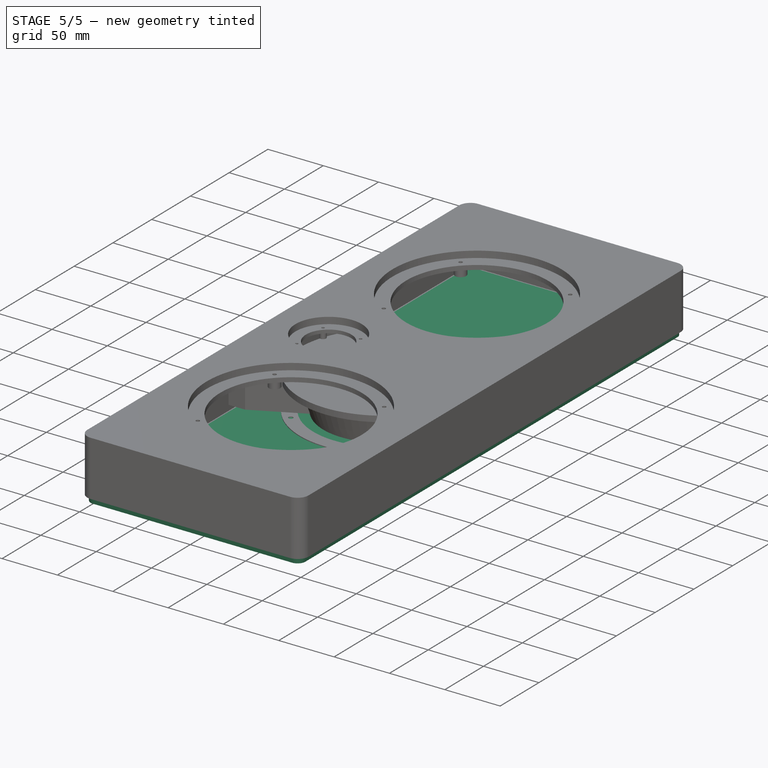
[diagram: stage 5 of 5 — iso view after this stage's code; geometry added in this stage tinted green]
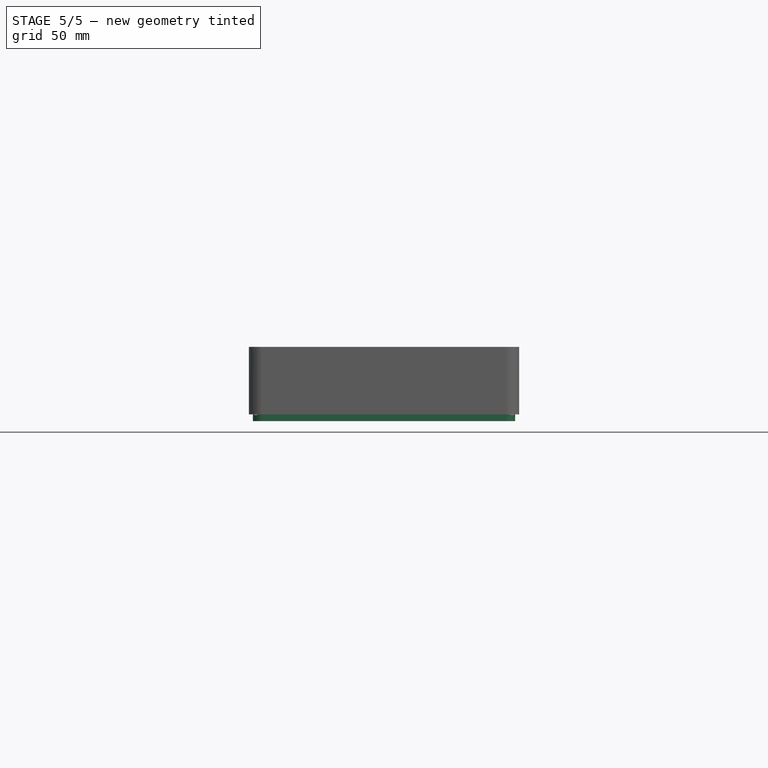
[diagram: stage 5 of 5 — front view after this stage's code; geometry added in this stage tinted green]
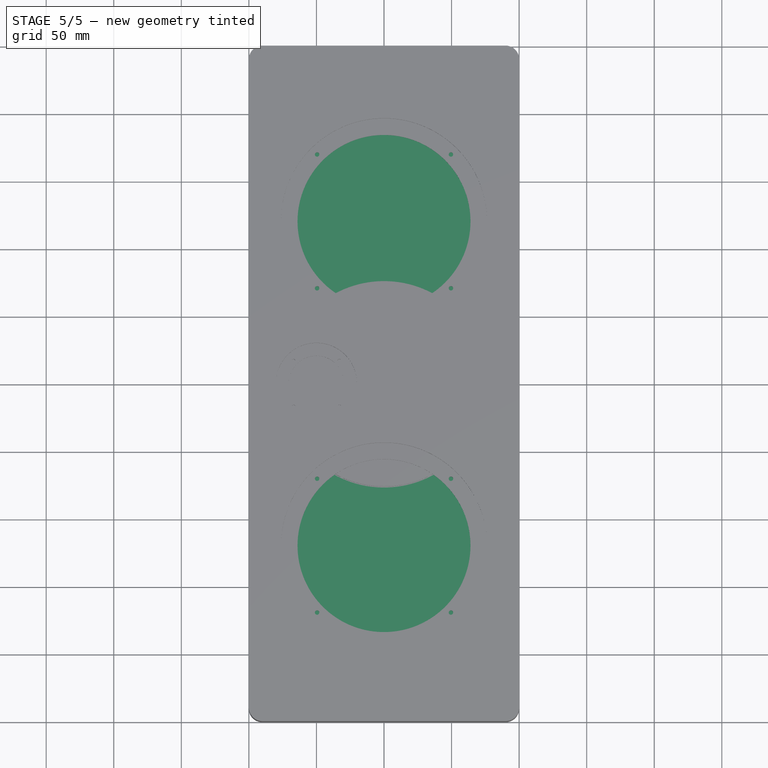
[diagram: stage 5 of 5 — top view after this stage's code; geometry added in this stage tinted green]
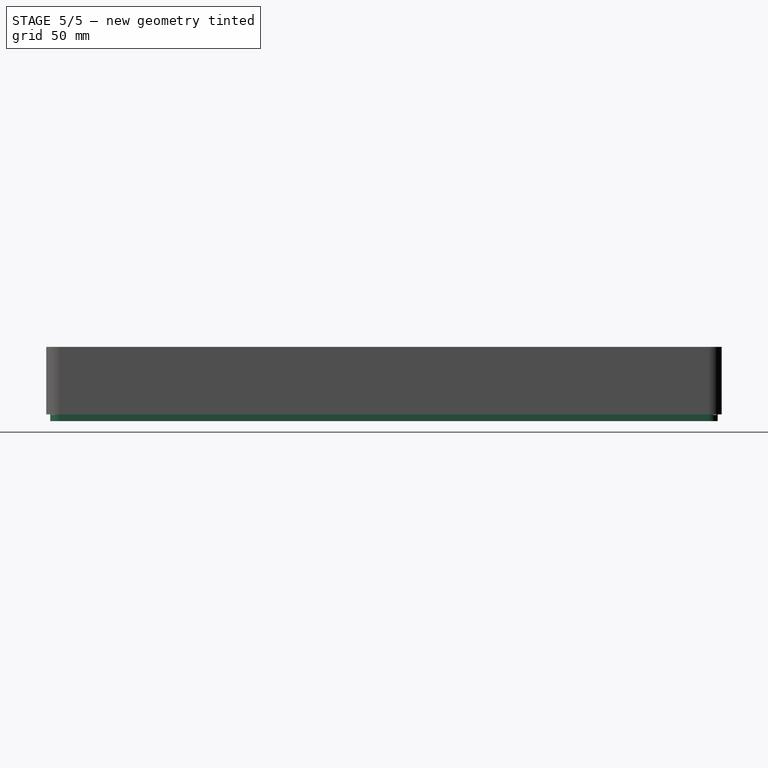
[diagram: stage 5 of 5 — right view after this stage's code; geometry added in this stage tinted green]
FEATURE [Sketcher::SketchObject] Sketch013
  ArcFitTolerance = 1e-06
  AttachmentSupport = -> [Pad003]
  ExternalTypes = [0]
  FullyConstrained = true
  MakeInternals = false
  MapMode = 5
  Placement = pos=(10.1082,20.441,0) rot=(0.163069,0.697642,0.697642;2.8183rad)
  sketch-geometry (1):
    g0: Circle CenterX=60 CenterY=8 CenterZ=0 NormalX=0 NormalY=0 NormalZ=1 AngleXU=0 Radius=2
  constraints (3):
    c: Diameter(g0) = 4
    c: DistanceY(g-1,g0) = 8
    c: DistanceX(g-1,g0) = 60
FEATURE [App::Point] Origin003
  Role = Origin
FEATURE [Sketcher::SketchObject] Sketch010  label="back panel outline"
  ArcFitTolerance = 1e-06
  AttachmentSupport = -> [XY_Plane002]
  ExternalTypes = [0]
  FullyConstrained = true
  MakeInternals = false
  MapMode = 5
  expr: Constraints[17] = <<dim>>.back_panel_radius
  expr: Constraints[18] = <<dim>>.back_panel_width
  expr: Constraints[19] = <<dim>>.back_panel_length
  sketch-geometry (10):
    g0: LineSegment StartX=-97 StartY=240 StartZ=0 EndX=-97 EndY=-240 EndZ=0
    g1: LineSegment StartX=-90 StartY=-247 StartZ=0 EndX=90 EndY=-247 EndZ=0
    g2: LineSegment StartX=97 StartY=-240 StartZ=0 EndX=97 EndY=240 EndZ=0
    g3: LineSegment StartX=90 StartY=247 StartZ=0 EndX=-90 EndY=247 EndZ=0
    g4: ArcOfCircle CenterX=-90 CenterY=240 CenterZ=0 NormalX=0 NormalY=0 NormalZ=1 AngleXU=0 Radius=7 StartAngle=1.5708 EndAngle=3.14159
    g5: ArcOfCircle CenterX=-90 CenterY=-240 CenterZ=0 NormalX=0 NormalY=0 NormalZ=1 AngleXU=0 Radius=7 StartAngle=3.14159 EndAngle=4.71239
    g6: ArcOfCircle CenterX=90 CenterY=-240 CenterZ=0 NormalX=0 NormalY=0 NormalZ=1 AngleXU=0 Radius=7 StartAngle=4.71239 EndAngle=6.28319
    g7: ArcOfCircle CenterX=90 CenterY=240 CenterZ=0 NormalX=0 NormalY=0 NormalZ=1 AngleXU=0 Radius=7 StartAngle=-9e-16 EndAngle=1.5708
    g8: GeomPoint [constr] X=-97 Y=247 Z=0
    g9: GeomPoint [constr] X=97 Y=-247 Z=0
  constraints (22):
    c: Tangent(g0,g4) = -1.5708
    c: Tangent(g0,g5) = -1.5708
    c: Tangent(g1,g5) = -1.5708
    c: Tangent(g1,g6) = -1.5708
    c: Tangent(g2,g6) = -1.5708
    c: Tangent(g2,g7) = -1.5708
    c: Tangent(g3,g7) = -1.5708
    c: Tangent(g3,g4) = -1.5708
    c: Vertical(g0)
    c: Vertical(g2)
    c: Horizontal(g1)
    c: Horizontal(g3)
    c: Equal(g5,g6)
    c: PointOnObject(g8,g0)
    c: PointOnObject(g8,g3)
    c: PointOnObject(g9,g1)
    c: PointOnObject(g9,g2)
    c: Radius(g5) = 7
    c: DistanceX(g0,g2) = 194
    c: DistanceY(g1,g3) = 494
    c: Symmetric(g0,g2,g-2)
    c: Symmetric(g3,g1,g-1)
FEATURE [PartDesign::Pad] Pad004  label="back panel pad"
  Direction = (0,0,1)
  Length = 5
  Length2 = 10
  Profile = -> Sketch010
  ReferenceAxis = -> Sketch010 [N_Axis]
  Reversed = true
  Suppressed = false
  Type = 0
  expr: Length = <<dim>>.back_thickness
FEATURE [App::Point] Origin005
  Role = Origin
FEATURE [Sketcher::SketchObject] Sketch014  label="back panel posts"
  ArcFitTolerance = 1e-06
  AttachmentSupport = -> [Pad004]
  ExternalTypes = [0]
  FullyConstrained = true
  MakeInternals = false
  MapMode = 2
  sketch-geometry (7):
    g0: Circle CenterX=92.5 CenterY=242.5 CenterZ=0 NormalX=0 NormalY=0 NormalZ=1 AngleXU=0 Radius=5
    g1: Circle CenterX=-92.5 CenterY=242.5 CenterZ=0 NormalX=0 NormalY=0 NormalZ=1 AngleXU=0 Radius=5
    g2: Circle CenterX=-92.5 CenterY=0 CenterZ=0 NormalX=0 NormalY=0 NormalZ=1 AngleXU=0 Radius=5
    g3: Circle CenterX=92.5 CenterY=0 CenterZ=0 NormalX=0 NormalY=0 NormalZ=1 AngleXU=0 Radius=5
    g4: Circle CenterX=-92.5 CenterY=-242.5 CenterZ=0 NormalX=0 NormalY=0 NormalZ=1 AngleXU=0 Radius=5
    g5: Circle CenterX=92.5 CenterY=-242.5 CenterZ=0 NormalX=0 NormalY=0 NormalZ=1 AngleXU=0 Radius=5
    g6: Circle CenterX=20 CenterY=0 CenterZ=0 NormalX=0 NormalY=0 NormalZ=1 AngleXU=0 Radius=5
  constraints (17):
    c: Diameter(g0) = 10
    c: Diameter(g1) = 10
    c: Symmetric(g1,g0,g-2)
    c: DistanceY(g-1,g1) = 242.5
    c: DistanceX(g1,g-1) = 92.5
    c: Diameter(g2) = 10
    c: PointOnObject(g2,g-1)
    c: DistanceX(g2,g-1) = 92.5
    c: Diameter(g3) = 10
    c: Diameter(g4) = 10
    c: Diameter(g5) = 10
    c: Symmetric(g2,g3,g-2)
    c: Symmetric(g1,g4,g-1)
    c: Symmetric(g0,g5,g-1)
    c: Diameter(g6) = 10
    c: PointOnObject(g6,g-1)
    c: DistanceX(g-1,g6) = 20
FEATURE [App::Point] Origin007
  Role = Origin
FEATURE [Sketcher::SketchObject] Sketch015
  ArcFitTolerance = 1e-06
  AttachmentSupport = -> [Origin006]
  ExternalTypes = [0]
  FullyConstrained = true
  MakeInternals = false
  MapMode = 5
  sketch-geometry (8):
    g0: ArcOfCircle CenterX=0 CenterY=0 CenterZ=0 NormalX=0 NormalY=0 NormalZ=1 AngleXU=0 Radius=29.9 StartAngle=1.5708 EndAngle=3.14159
    g1: ArcOfCircle CenterX=0 CenterY=0 CenterZ=0 NormalX=0 NormalY=0 NormalZ=1 AngleXU=0 Radius=23.25 StartAngle=2.58919 EndAngle=3.14159
    g2: ArcOfCircle CenterX=-16.8247 CenterY=16.8336 CenterZ=0 NormalX=0 NormalY=0 NormalZ=1 AngleXU=0 Radius=3.72 StartAngle=0.960084 EndAngle=3.75505
    g3: ArcOfCircle CenterX=-21.785 CenterY=13.3876 CenterZ=0 NormalX=0 NormalY=0 NormalZ=1 AngleXU=0 Radius=2.32 StartAngle=5.74581 EndAngle=6.88028
    g4: ArcOfCircle CenterX=-13.3758 CenterY=21.792 CenterZ=0 NormalX=0 NormalY=0 NormalZ=1 AngleXU=0 Radius=2.32 StartAngle=4.10939 EndAngle=5.24385
    g5: LineSegment StartX=1.4e-15 StartY=29.9 StartZ=0 EndX=1.4e-15 EndY=23.25 EndZ=0
    g6: LineSegment StartX=-29.9 StartY=3.7e-15 StartZ=0 EndX=-23.25 EndY=3.7e-15 EndZ=0
    g7: ArcOfCircle CenterX=0 CenterY=0 CenterZ=0 NormalX=0 NormalY=0 NormalZ=1 AngleXU=0 Radius=23.25 StartAngle=1.5708 EndAngle=2.1232
  constraints (28):
    c: Coincident(g0,g-1)
    c: PointOnObject(g1,g-1)
    c: PointOnObject(g1,g-2)
    c: DistanceX(g7,g-1) = 12.2
    c: DistanceY(g-1,g1) = 12.2
    c: Radius(g2) = 3.72
    c: Coincident(g3,g2)
    c: Coincident(g3,g1)
    c: Coincident(g4,g7)
    c: Coincident(g4,g2)
    c: Radius(g3) = 2.32
    c: Radius(g4) = 2.32
    c: Angle(g3) = 1.13446
    c: Angle(g4) = 1.13446
    c: Distance(g2,g-1) = 23.8
    c: Angle(g2) = 2.79497
    c: Vertical(g5)
    c: PointOnObject(g5,g-2)
    c: Horizontal(g6)
    c: PointOnObject(g6,g-1)
    c: Diameter(g0) = 59.8
    c: Coincident(g5,g0)
    c: Coincident(g6,g0)
    c: Diameter(g1) = 46.5
    c: Coincident(g5,g7)
    c: Coincident(g6,g1)
    c: Coincident(g1,g7)
    c: Radius(g7) = 23.25
FEATURE [PartDesign::Pad] Pad008
  Direction = (0,0,1)
  Length = 3.25
  Length2 = 10
  Profile = -> Sketch015
  ReferenceAxis = -> Sketch015 [N_Axis]
  Suppressed = false
  Type = 0
FEATURE [App::Point] Origin009
  Role = Origin
FEATURE [Sketcher::SketchObject] Sketch017  label="Woofer gasket"
  ArcFitTolerance = 1e-06
  AttachmentSupport = -> [Origin008]
  ExternalTypes = [0]
  FullyConstrained = true
  MakeInternals = false
  MapMode = 5
  expr: Constraints[0] = <<dim>>.woofer_rebate_diameter
  expr: Constraints[11] = <<dim>>.woofer_screw_offset
  expr: Constraints[12] = <<dim>>.woofer_screw_offset
  expr: Constraints[1] = <<dim>>.woofer_hole_diameter
  sketch-geometry (6):
    g0: Circle CenterX=0 CenterY=0 CenterZ=0 NormalX=0 NormalY=0 NormalZ=1 AngleXU=0 Radius=76.25
    g1: Circle CenterX=0 CenterY=0 CenterZ=0 NormalX=0 NormalY=0 NormalZ=1 AngleXU=0 Radius=64
    g2: Circle CenterX=49.5253 CenterY=-49.5253 CenterZ=0 NormalX=0 NormalY=0 NormalZ=1 AngleXU=0 Radius=2
    g3: Circle CenterX=49.5253 CenterY=49.5253 CenterZ=0 NormalX=0 NormalY=0 NormalZ=1 AngleXU=0 Radius=2
    g4: Circle CenterX=-49.5253 CenterY=49.5253 CenterZ=0 NormalX=0 NormalY=0 NormalZ=1 AngleXU=0 Radius=2
    g5: Circle CenterX=-49.5253 CenterY=-49.5253 CenterZ=0 NormalX=0 NormalY=0 NormalZ=1 AngleXU=0 Radius=2
  constraints (13):
    c: Diameter(g0) = 152.5
    c: Diameter(g1) = 128
    c: Coincident(g0,g1)
    c: Coincident(g-1,g0)
    c: Equal(g2,g3)
    c: Equal(g2,g4)
    c: Equal(g2,g5)
    c: Diameter(g2) = 4
    c: Symmetric(g4,g3,g-2)
    c: Symmetric(g5,g2,g-2)
    c: Symmetric(g4,g5,g-1)
    c: DistanceX(g-1,g3) = 49.5253
    c: DistanceY(g-1,g3) = 49.5253
FEATURE [PartDesign::PolarPattern] PolarPattern
  Angle = 360
  Axis = -> Sketch015 [N_Axis]
  BaseFeature = -> Pad008
  Mode = 0
  Occurrences = 4
  Offset = 120
  Originals = -> [Pad008]
  Suppressed = false
  TransformMode = 0
FEATURE [PartDesign::Hole] Hole003  label="back panel screw holes"
  BaseFeature = -> Pad004
  BaseProfileType = 7
  CustomThreadClearance = 0
  Depth = 5
  DepthType = 0
  Diameter = 4.5
  DrillForDepth = false
  DrillPoint = 1
  DrillPointAngle = 118
  HoleCutCountersinkAngle = 90
  HoleCutCustomValues = false
  HoleCutDepth = 4
  HoleCutDiameter = 8
  HoleCutType = 2
  ModelThread = false
  Profile = -> Sketch014
  Suppressed = false
  Tapered = false
  TaperedAngle = 90
  ThreadClass = 0
  ThreadDepth = 5
  ThreadDepthType = 0
  ThreadDiameter = 4
  ThreadDirection = 0
  ThreadFit = 0
  ThreadSize = 11
  ThreadType = 1
  Threaded = false
  UseCustomThreadClearance = false
FEATURE [PartDesign::Body] Body002  label="back panel"
  AllowCompound = false
  Group = -> [Sketch010,Pad004,Sketch014,Hole003]
  Origin = -> Origin004
  Placement = pos=(0,0,5) rot=(0,0,1;0rad)
  Tip = -> Hole003
  expr: .Placement.Base.z = <<dim>>.rim_depth
FEATURE [PartDesign::Hole] Hole004  label="back panel screw post threaded holes"
  BaseFeature = -> Hole002
  BaseProfileType = 7
  CustomThreadClearance = 0
  Depth = 25
  DepthType = 0
  Diameter = 3.3
  DrillForDepth = false
  DrillPoint = 1
  DrillPointAngle = 118
  HoleCutCountersinkAngle = 90
  HoleCutCustomValues = false
  HoleCutDepth = 0
  HoleCutDiameter = 0
  HoleCutType = 0
  ModelThread = false
  Profile = -> Sketch018
  Suppressed = false
  Tapered = false
  TaperedAngle = 90
  ThreadClass = 0
  ThreadDepth = 25
  ThreadDepthType = 0
  ThreadDiameter = 4
  ThreadDirection = 0
  ThreadFit = 0
  ThreadSize = 11
  ThreadType = 1
  Threaded = true
  UseCustomThreadClearance = false
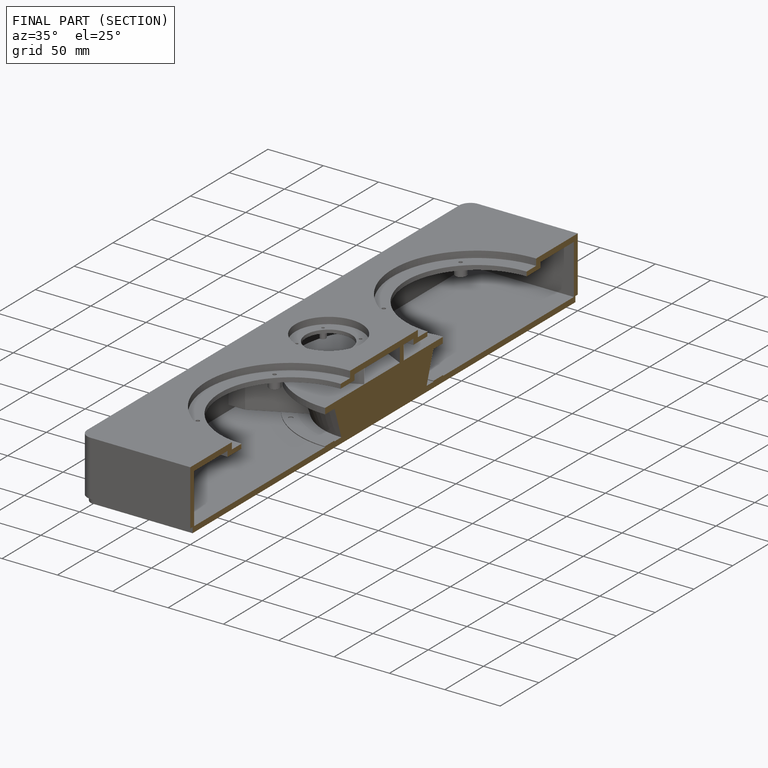
[diagram: finished part — half-section view (interior)]
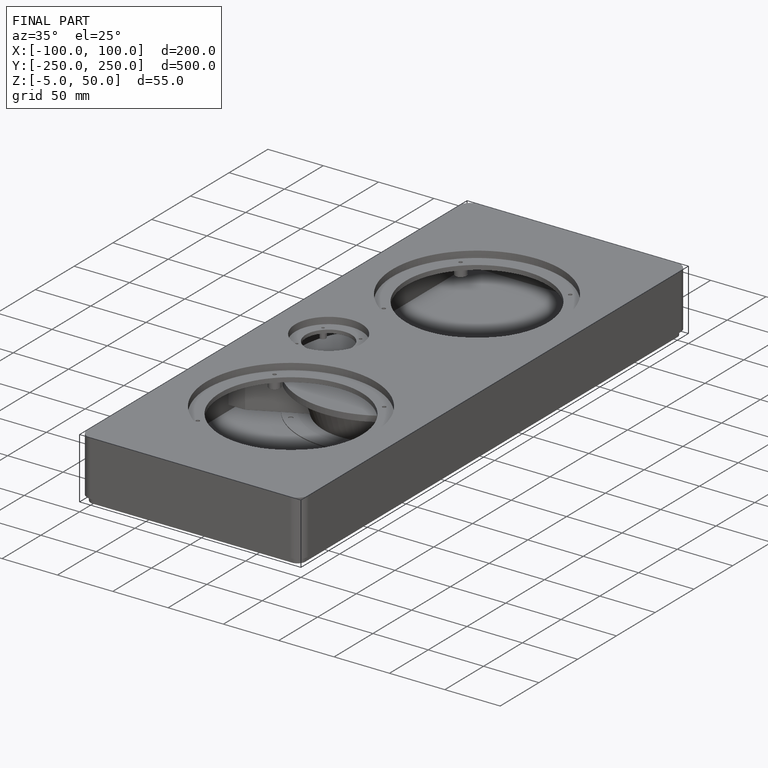
[diagram: finished part — iso view with bounding-box wireframe]
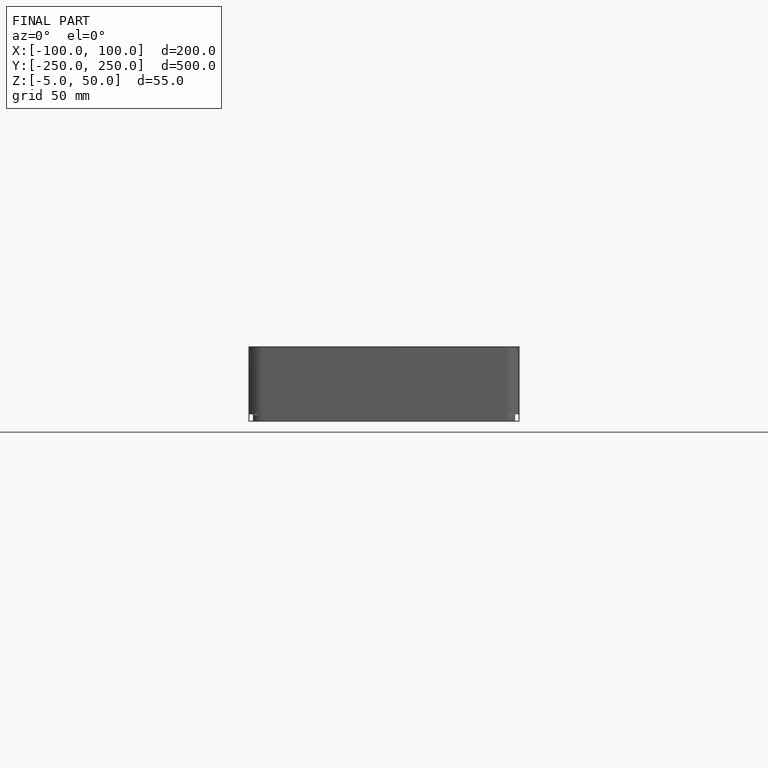
[diagram: finished part — front view with bounding-box wireframe]
